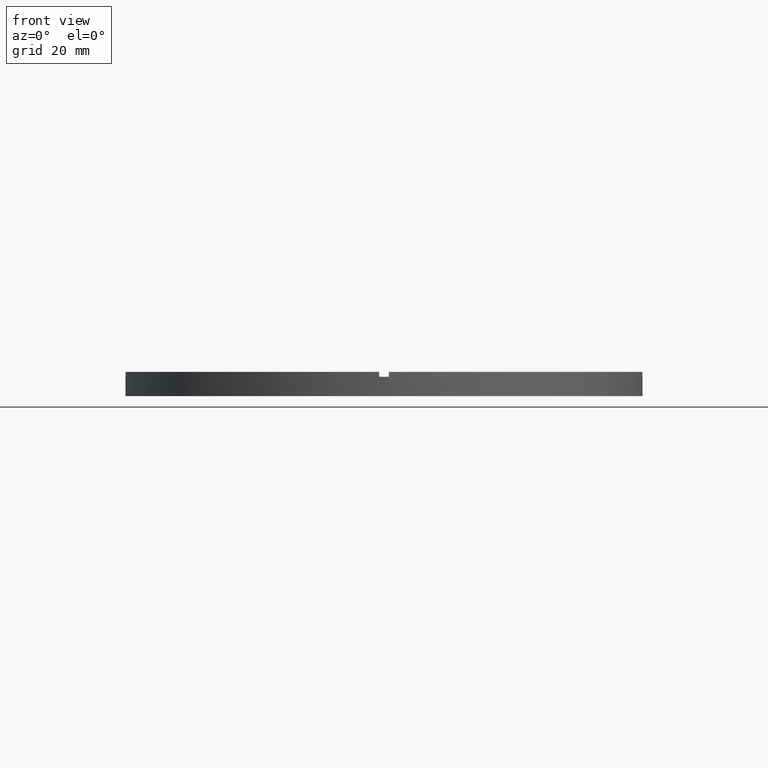
[diagram: clean part render]
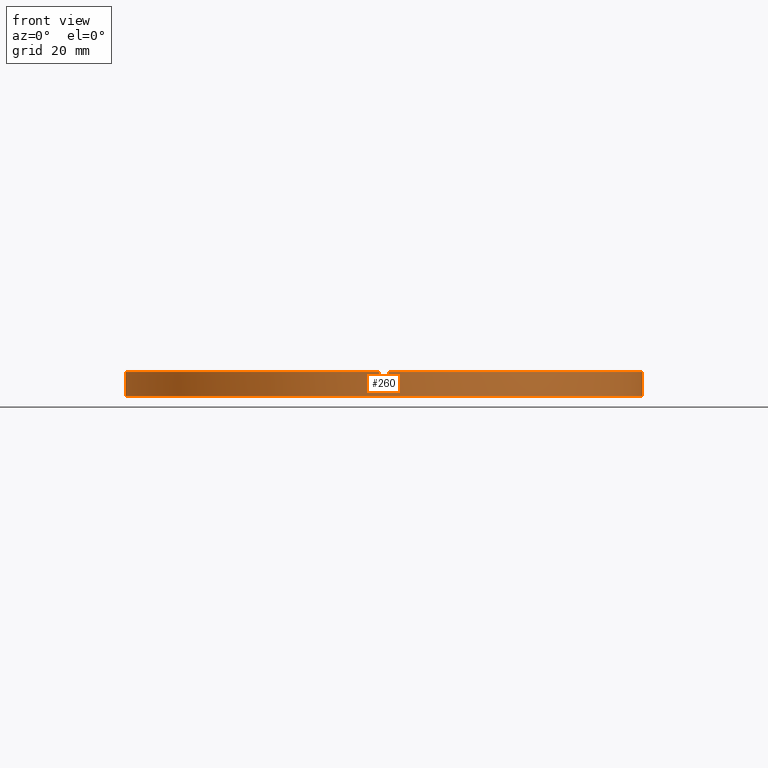
[diagram: same view with one face highlighted and labeled with its STEP entity id]
A machine part, front view. The second image highlights one B-rep face of the part: STEP entity #260.
In plain terms, the highlighted cylindrical surface (partial cylindrical patch) has radius 53.5 mm, axis along (-0, -0, -1).
Its self-contained STEP definition (entity closure, byte-faithful):
#22 = CARTESIAN_POINT ( 'NONE',  ( -53.49065338916696533, -1.000000000000032641, 5.000000000000000000 ) ) ;
#33 = EDGE_CURVE ( 'NONE', #704, #215, #486, .T. ) ;
#37 = DIRECTION ( 'NONE',  ( 0.000000000000000000, 0.000000000000000000, 1.000000000000000000 ) ) ;
#48 = DIRECTION ( 'NONE',  ( 0.000000000000000000, 0.000000000000000000, 1.000000000000000000 ) ) ;
#50 = AXIS2_PLACEMENT_3D ( 'NONE', #746, #48, #282 ) ;
#57 = CIRCLE ( 'NONE', #98, 53.50000000000000000 ) ;
#66 = FACE_OUTER_BOUND ( 'NONE', #185, .T. ) ;
#70 = CIRCLE ( 'NONE', #267, 53.50000000000000000 ) ;
#73 = AXIS2_PLACEMENT_3D ( 'NONE', #617, #611, #84 ) ;
#84 = DIRECTION ( 'NONE',  ( 1.000000000000000000, 0.000000000000000000, 0.000000000000000000 ) ) ;
#87 = CARTESIAN_POINT ( 'NONE',  ( 53.50000000000000000, 6.551860375438339893E-15, 0.000000000000000000 ) ) ;
#95 = EDGE_CURVE ( 'NONE', #438, #100, #293, .T. ) ;
#98 = AXIS2_PLACEMENT_3D ( 'NONE', #431, #653, #258 ) ;
#100 = VERTEX_POINT ( 'NONE', #123 ) ;
#107 = DIRECTION ( 'NONE',  ( -0.000000000000000000, 0.000000000000000000, 1.000000000000000000 ) ) ;
#111 = LINE ( 'NONE', #252, #382 ) ;
#122 = LINE ( 'NONE', #731, #396 ) ;
#123 = CARTESIAN_POINT ( 'NONE',  ( 0.9999999999998441247, -53.49065338916697243, 4.000000000000000000 ) ) ;
#141 = EDGE_CURVE ( 'NONE', #704, #100, #305, .T. ) ;
#157 = ORIENTED_EDGE ( 'NONE', *, *, #515, .F. ) ;
#165 = ORIENTED_EDGE ( 'NONE', *, *, #33, .T. ) ;
#166 = ORIENTED_EDGE ( 'NONE', *, *, #242, .F. ) ;
#178 = VERTEX_POINT ( 'NONE', #698 ) ;
#182 = ORIENTED_EDGE ( 'NONE', *, *, #237, .F. ) ;
#185 = EDGE_LOOP ( 'NONE', ( #157, #196, #422, #678, #679, #419, #165, #166, #481, #182, #363, #740 ) ) ;
#196 = ORIENTED_EDGE ( 'NONE', *, *, #411, .F. ) ;
#197 = DIRECTION ( 'NONE',  ( 1.000000000000000000, 0.000000000000000000, 0.000000000000000000 ) ) ;
#215 = VERTEX_POINT ( 'NONE', #555 ) ;
#217 = VERTEX_POINT ( 'NONE', #667 ) ;
#222 = VERTEX_POINT ( 'NONE', #22 ) ;
#224 = CARTESIAN_POINT ( 'NONE',  ( 0.9999999999998441247, -53.49065338916697243, 5.000000000000000000 ) ) ;
#237 = EDGE_CURVE ( 'NONE', #442, #688, #57, .T. ) ;
#242 = EDGE_CURVE ( 'NONE', #222, #215, #310, .T. ) ;
#248 = EDGE_CURVE ( 'NONE', #683, #370, #553, .T. ) ;
#249 = CARTESIAN_POINT ( 'NONE',  ( -53.49065338916696533, -1.000000000000032641, 4.000000000000000000 ) ) ;
#251 = DIRECTION ( 'NONE',  ( -1.000000000000000000, 0.000000000000000000, 0.000000000000000000 ) ) ;
#252 = CARTESIAN_POINT ( 'NONE',  ( 53.50000000000000000, 6.551860375438339893E-15, 5.000000000000000000 ) ) ;
#254 = DIRECTION ( 'NONE',  ( -0.000000000000000000, -0.000000000000000000, -1.000000000000000000 ) ) ;
#255 = EDGE_CURVE ( 'NONE', #178, #487, #70, .T. ) ;
#258 = DIRECTION ( 'NONE',  ( 1.000000000000000000, 0.000000000000000000, 0.000000000000000000 ) ) ;
#260 = ADVANCED_FACE ( 'NONE', ( #66 ), #329, .T. ) ;
#267 = AXIS2_PLACEMENT_3D ( 'NONE', #594, #37, #197 ) ;
#275 = CARTESIAN_POINT ( 'NONE',  ( 53.49065338916696533, -1.000000000000154543, 4.000000000000000000 ) ) ;
#282 = DIRECTION ( 'NONE',  ( 1.000000000000000000, 0.000000000000000000, 0.000000000000000000 ) ) ;
#291 = EDGE_CURVE ( 'NONE', #442, #178, #324, .T. ) ;
#293 = LINE ( 'NONE', #224, #299 ) ;
#299 = VECTOR ( 'NONE', #759, 1000.000000000000000 ) ;
#305 = CIRCLE ( 'NONE', #775, 53.50000000000000000 ) ;
#310 = CIRCLE ( 'NONE', #403, 53.50000000000000000 ) ;
#321 = VECTOR ( 'NONE', #413, 1000.000000000000000 ) ;
#324 = LINE ( 'NONE', #590, #588 ) ;
#329 = CYLINDRICAL_SURFACE ( 'NONE', #645, 53.50000000000000000 ) ;
#336 = CARTESIAN_POINT ( 'NONE',  ( -1.000000000000155875, -53.49065338916696533, 4.000000000000000000 ) ) ;
#363 = ORIENTED_EDGE ( 'NONE', *, *, #291, .T. ) ;
#364 = EDGE_CURVE ( 'NONE', #438, #370, #389, .T. ) ;
#370 = VERTEX_POINT ( 'NONE', #770 ) ;
#382 = VECTOR ( 'NONE', #254, 1000.000000000000000 ) ;
#389 = CIRCLE ( 'NONE', #50, 53.50000000000000000 ) ;
#396 = VECTOR ( 'NONE', #783, 1000.000000000000000 ) ;
#403 = AXIS2_PLACEMENT_3D ( 'NONE', #512, #599, #580 ) ;
#411 = EDGE_CURVE ( 'NONE', #683, #217, #639, .T. ) ;
#413 = DIRECTION ( 'NONE',  ( 0.000000000000000000, 0.000000000000000000, 1.000000000000000000 ) ) ;
#419 = ORIENTED_EDGE ( 'NONE', *, *, #141, .F. ) ;
#422 = ORIENTED_EDGE ( 'NONE', *, *, #248, .T. ) ;
#431 = CARTESIAN_POINT ( 'NONE',  ( 0.000000000000000000, 0.000000000000000000, 4.000000000000000000 ) ) ;
#438 = VERTEX_POINT ( 'NONE', #722 ) ;
#442 = VERTEX_POINT ( 'NONE', #778 ) ;
#481 = ORIENTED_EDGE ( 'NONE', *, *, #582, .T. ) ;
#486 = LINE ( 'NONE', #523, #736 ) ;
#487 = VERTEX_POINT ( 'NONE', #87 ) ;
#512 = CARTESIAN_POINT ( 'NONE',  ( 0.000000000000000000, 0.000000000000000000, 5.000000000000000000 ) ) ;
#515 = EDGE_CURVE ( 'NONE', #217, #487, #111, .T. ) ;
#523 = CARTESIAN_POINT ( 'NONE',  ( -1.000000000000155875, -53.49065338916696533, 5.000000000000000000 ) ) ;
#526 = DIRECTION ( 'NONE',  ( 1.000000000000000000, 0.000000000000000000, 0.000000000000000000 ) ) ;
#553 = LINE ( 'NONE', #627, #321 ) ;
#555 = CARTESIAN_POINT ( 'NONE',  ( -1.000000000000155875, -53.49065338916696533, 5.000000000000000000 ) ) ;
#565 = DIRECTION ( 'NONE',  ( 0.000000000000000000, 0.000000000000000000, 1.000000000000000000 ) ) ;
#580 = DIRECTION ( 'NONE',  ( 1.000000000000000000, 0.000000000000000000, 0.000000000000000000 ) ) ;
#582 = EDGE_CURVE ( 'NONE', #222, #688, #122, .T. ) ;
#588 = VECTOR ( 'NONE', #748, 1000.000000000000000 ) ;
#590 = CARTESIAN_POINT ( 'NONE',  ( -53.50000000000000000, 0.000000000000000000, 5.000000000000000000 ) ) ;
#594 = CARTESIAN_POINT ( 'NONE',  ( 0.000000000000000000, 0.000000000000000000, 0.000000000000000000 ) ) ;
#599 = DIRECTION ( 'NONE',  ( 0.000000000000000000, 0.000000000000000000, 1.000000000000000000 ) ) ;
#611 = DIRECTION ( 'NONE',  ( 0.000000000000000000, 0.000000000000000000, 1.000000000000000000 ) ) ;
#617 = CARTESIAN_POINT ( 'NONE',  ( 0.000000000000000000, 0.000000000000000000, 4.000000000000000000 ) ) ;
#627 = CARTESIAN_POINT ( 'NONE',  ( 53.49065338916696533, -1.000000000000154543, 5.000000000000000000 ) ) ;
#639 = CIRCLE ( 'NONE', #73, 53.50000000000000000 ) ;
#645 = AXIS2_PLACEMENT_3D ( 'NONE', #649, #782, #251 ) ;
#649 = CARTESIAN_POINT ( 'NONE',  ( 0.000000000000000000, 0.000000000000000000, 5.000000000000000000 ) ) ;
#653 = DIRECTION ( 'NONE',  ( 0.000000000000000000, 0.000000000000000000, 1.000000000000000000 ) ) ;
#667 = CARTESIAN_POINT ( 'NONE',  ( 53.50000000000000000, 6.551860375438339893E-15, 4.000000000000000000 ) ) ;
#678 = ORIENTED_EDGE ( 'NONE', *, *, #364, .F. ) ;
#679 = ORIENTED_EDGE ( 'NONE', *, *, #95, .T. ) ;
#683 = VERTEX_POINT ( 'NONE', #275 ) ;
#688 = VERTEX_POINT ( 'NONE', #249 ) ;
#698 = CARTESIAN_POINT ( 'NONE',  ( -53.50000000000000000, 0.000000000000000000, 0.000000000000000000 ) ) ;
#704 = VERTEX_POINT ( 'NONE', #336 ) ;
#722 = CARTESIAN_POINT ( 'NONE',  ( 0.9999999999998441247, -53.49065338916697243, 5.000000000000000000 ) ) ;
#731 = CARTESIAN_POINT ( 'NONE',  ( -53.49065338916696533, -1.000000000000032641, 5.000000000000000000 ) ) ;
#736 = VECTOR ( 'NONE', #565, 1000.000000000000000 ) ;
#740 = ORIENTED_EDGE ( 'NONE', *, *, #255, .T. ) ;
#746 = CARTESIAN_POINT ( 'NONE',  ( 0.000000000000000000, 0.000000000000000000, 5.000000000000000000 ) ) ;
#748 = DIRECTION ( 'NONE',  ( -0.000000000000000000, -0.000000000000000000, -1.000000000000000000 ) ) ;
#759 = DIRECTION ( 'NONE',  ( -0.000000000000000000, -0.000000000000000000, -1.000000000000000000 ) ) ;
#765 = CARTESIAN_POINT ( 'NONE',  ( 0.000000000000000000, 0.000000000000000000, 4.000000000000000000 ) ) ;
#770 = CARTESIAN_POINT ( 'NONE',  ( 53.49065338916696533, -1.000000000000154543, 5.000000000000000000 ) ) ;
#775 = AXIS2_PLACEMENT_3D ( 'NONE', #765, #107, #526 ) ;
#778 = CARTESIAN_POINT ( 'NONE',  ( -53.50000000000000000, 0.000000000000000000, 4.000000000000000000 ) ) ;
#782 = DIRECTION ( 'NONE',  ( -0.000000000000000000, -0.000000000000000000, -1.000000000000000000 ) ) ;
#783 = DIRECTION ( 'NONE',  ( -0.000000000000000000, -0.000000000000000000, -1.000000000000000000 ) ) ;